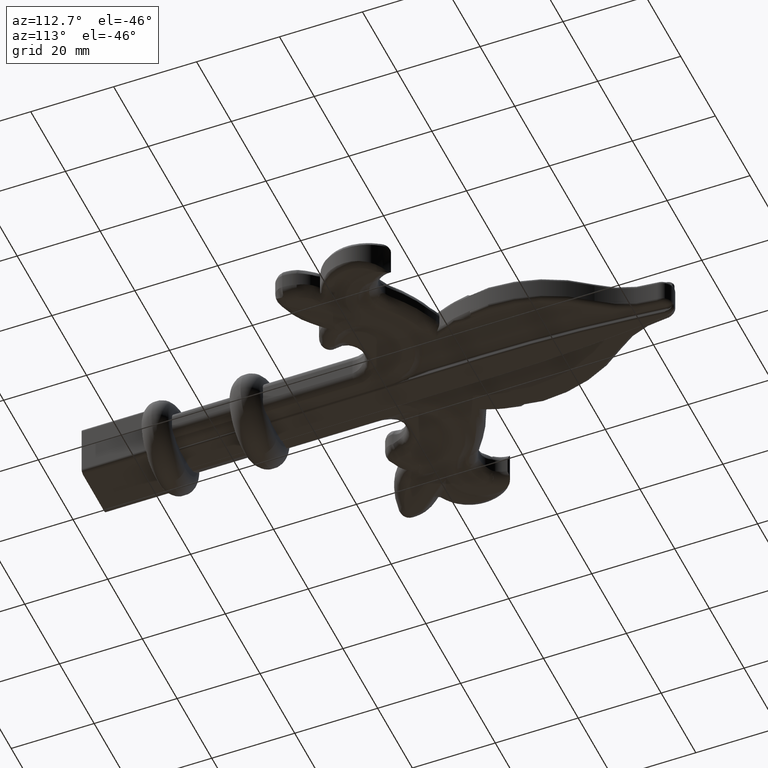
[diagram: clean part render]
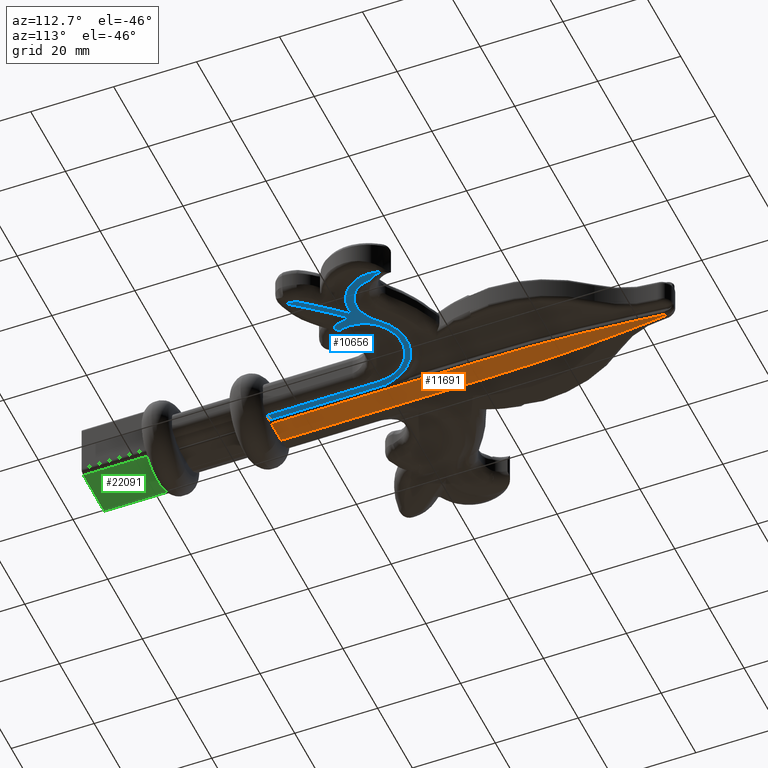
[diagram: same view with three faces highlighted in distinct colors, each labeled with its STEP entity id]
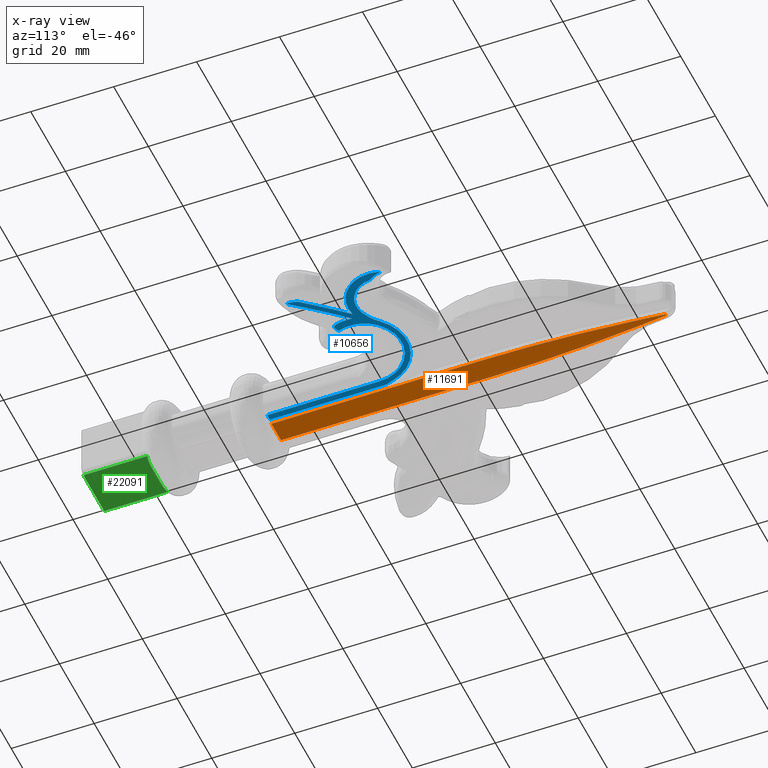
[diagram: x-ray of the same camera — body ghosted, the three highlighted faces saturated]
A machine part, auxiliary view with three faces highlighted in distinct colors.
The next image is the same camera in x-ray (body ghosted, the three faces saturated) — at least one of them is partly hidden behind the body in this view.
Their STEP definitions:

[orange] entity #11691 — the highlighted planar face has unit normal (0, 0, -1).
#289 = ORIENTED_EDGE ( 'NONE', *, *, #1900, .T. ) ;
#840 = LINE ( 'NONE', #21511, #9510 ) ;
#1342 = AXIS2_PLACEMENT_3D ( 'NONE', #23990, #10650, #26138 ) ;
#1398 = DIRECTION ( 'NONE',  ( 1.000000000000000000, 0.000000000000000000, 0.000000000000000000 ) ) ;
#1900 = EDGE_CURVE ( 'NONE', #17705, #24250, #27475, .T. ) ;
#2977 = CARTESIAN_POINT ( 'NONE',  ( 0.1958383187995045849, 122.9807466314520212, -5.000000000000000888 ) ) ;
#3470 = CARTESIAN_POINT ( 'NONE',  ( -2.749999999999976019, 80.00000000000004263, -5.000000000000000000 ) ) ;
#3630 = ORIENTED_EDGE ( 'NONE', *, *, #22483, .F. ) ;
#3844 = VERTEX_POINT ( 'NONE', #26179 ) ;
#3938 = VERTEX_POINT ( 'NONE', #21864 ) ;
#4014 = DIRECTION ( 'NONE',  ( -1.000000000000000000, 0.000000000000000000, 0.000000000000000000 ) ) ;
#5580 = CARTESIAN_POINT ( 'NONE',  ( -347.4095368381057369, 80.00000000000000000, -5.000000000000000000 ) ) ;
#6903 = CARTESIAN_POINT ( 'NONE',  ( -2.749999999999976019, 80.00000000000004263, -5.000000000000000000 ) ) ;
#7124 = VERTEX_POINT ( 'NONE', #10505 ) ;
#7967 = DIRECTION ( 'NONE',  ( 0.09981191532845422321, 0.9950063223711019811, 0.000000000000000000 ) ) ;
#8008 = CARTESIAN_POINT ( 'NONE',  ( 2.749999999999976019, 80.00000000000004263, -5.000000000000000000 ) ) ;
#8588 = CARTESIAN_POINT ( 'NONE',  ( -2.749999999999975575, 29.00000000000000000, -5.000000000000000000 ) ) ;
#8785 = DIRECTION ( 'NONE',  ( -0.09981191532845422321, 0.9950063223711019811, 0.000000000000000000 ) ) ;
#9346 = ORIENTED_EDGE ( 'NONE', *, *, #27784, .F. ) ;
#9351 = EDGE_CURVE ( 'NONE', #9873, #7124, #17237, .T. ) ;
#9510 = VECTOR ( 'NONE', #7967, 1000.000000000000114 ) ;
#9873 = VERTEX_POINT ( 'NONE', #19221 ) ;
#10079 = AXIS2_PLACEMENT_3D ( 'NONE', #5580, #14515, #1398 ) ;
#10505 = CARTESIAN_POINT ( 'NONE',  ( 0.000000000000000000, 122.9999890824078506, -5.000000000000000000 ) ) ;
#10650 = DIRECTION ( 'NONE',  ( 0.000000000000000000, 0.000000000000000000, -1.000000000000000000 ) ) ;
#11111 = LINE ( 'NONE', #17436, #22273 ) ;
#11691 = ADVANCED_FACE ( 'NONE', ( #27158 ), #12605, .T. ) ;
#11722 = B_SPLINE_CURVE_WITH_KNOTS ( 'NONE', 3,
 ( #23247, #14405, #16531, #23150 ),
 .UNSPECIFIED., .F., .F.,
 ( 4, 4 ),
 ( 0.7593153901365838898, 1.000000000000000000 ),
 .UNSPECIFIED. ) ;
#11997 = EDGE_CURVE ( 'NONE', #17547, #21254, #14223, .T. ) ;
#12605 = PLANE ( 'NONE',  #1342 ) ;
#13281 = EDGE_LOOP ( 'NONE', ( #27482, #3630, #15559, #289, #23050, #23466, #15185, #16453, #9346 ) ) ;
#13712 = CARTESIAN_POINT ( 'NONE',  ( 0.06570243381757459589, 122.9999573146637317, -5.000000000000000888 ) ) ;
#13806 = CARTESIAN_POINT ( 'NONE',  ( 0.000000000000000000, 122.9999890824078506, -5.000000000000000888 ) ) ;
#14223 = CIRCLE ( 'NONE', #10079, 350.1595368381056801 ) ;
#14405 = CARTESIAN_POINT ( 'NONE',  ( -0.1321420226886201033, 122.9936108293076131, -5.000000000000000000 ) ) ;
#14515 = DIRECTION ( 'NONE',  ( -0.000000000000000000, -0.000000000000000000, 1.000000000000000000 ) ) ;
#14749 = CIRCLE ( 'NONE', #20991, 350.1595368381056801 ) ;
#14952 = EDGE_CURVE ( 'NONE', #28606, #3844, #840, .T. ) ;
#15185 = ORIENTED_EDGE ( 'NONE', *, *, #26554, .T. ) ;
#15559 = ORIENTED_EDGE ( 'NONE', *, *, #18702, .F. ) ;
#16453 = ORIENTED_EDGE ( 'NONE', *, *, #9351, .F. ) ;
#16531 = CARTESIAN_POINT ( 'NONE',  ( -0.06684896866851157415, 122.9999567602996962, -5.000000000000000000 ) ) ;
#17237 = B_SPLINE_CURVE_WITH_KNOTS ( 'NONE', 3,
 ( #2977, #18069, #13712, #13806 ),
 .UNSPECIFIED., .F., .F.,
 ( 4, 4 ),
 ( 0.7582882186065450503, 1.000000000000000000 ),
 .UNSPECIFIED. ) ;
#17436 = CARTESIAN_POINT ( 'NONE',  ( 0.000000000000000000, 29.00000000000000000, -5.000000000000000000 ) ) ;
#17547 = VERTEX_POINT ( 'NONE', #8008 ) ;
#17705 = VERTEX_POINT ( 'NONE', #8588 ) ;
#18069 = CARTESIAN_POINT ( 'NONE',  ( 0.1313804285707133590, 122.9933975955205341, -5.000000000000000888 ) ) ;
#18702 = EDGE_CURVE ( 'NONE', #17705, #3938, #11111, .T. ) ;
#19221 = CARTESIAN_POINT ( 'NONE',  ( 0.1958383187995045849, 122.9807466314520212, -5.000000000000000000 ) ) ;
#19379 = DIRECTION ( 'NONE',  ( 0.000000000000000000, 0.000000000000000000, -1.000000000000000000 ) ) ;
#19472 = CARTESIAN_POINT ( 'NONE',  ( 347.4095368381057369, 80.00000000000000000, -5.000000000000000000 ) ) ;
#19942 = VECTOR ( 'NONE', #27162, 1000.000000000000000 ) ;
#20074 = CARTESIAN_POINT ( 'NONE',  ( 0.2304507295558823610, 122.6357042169481986, -5.000000000000000000 ) ) ;
#20991 = AXIS2_PLACEMENT_3D ( 'NONE', #19472, #19379, #4014 ) ;
#21254 = VERTEX_POINT ( 'NONE', #27480 ) ;
#21511 = CARTESIAN_POINT ( 'NONE',  ( -0.2304507295558823610, 122.6357042169481986, -5.000000000000000000 ) ) ;
#21523 = VECTOR ( 'NONE', #22575, 1000.000000000000000 ) ;
#21864 = CARTESIAN_POINT ( 'NONE',  ( 2.749999999999975575, 29.00000000000000000, -5.000000000000000000 ) ) ;
#21996 = EDGE_CURVE ( 'NONE', #24250, #28606, #14749, .T. ) ;
#22273 = VECTOR ( 'NONE', #26625, 1000.000000000000000 ) ;
#22369 = CARTESIAN_POINT ( 'NONE',  ( -1.001416154346232767, 114.9500940423357775, -5.000000000000000000 ) ) ;
#22483 = EDGE_CURVE ( 'NONE', #3938, #17547, #26257, .T. ) ;
#22575 = DIRECTION ( 'NONE',  ( -1.188166764367675911E-17, 1.000000000000000000, 0.000000000000000000 ) ) ;
#23050 = ORIENTED_EDGE ( 'NONE', *, *, #21996, .T. ) ;
#23150 = CARTESIAN_POINT ( 'NONE',  ( 0.000000000000000000, 122.9999890824078506, -5.000000000000000000 ) ) ;
#23214 = LINE ( 'NONE', #20074, #25326 ) ;
#23247 = CARTESIAN_POINT ( 'NONE',  ( -0.1958383187995045849, 122.9807466314520212, -5.000000000000000000 ) ) ;
#23466 = ORIENTED_EDGE ( 'NONE', *, *, #14952, .T. ) ;
#23990 = CARTESIAN_POINT ( 'NONE',  ( 1.145786434690479240E-53, 122.0000000000000000, -5.000000000000000000 ) ) ;
#24250 = VERTEX_POINT ( 'NONE', #3470 ) ;
#25326 = VECTOR ( 'NONE', #8785, 1000.000000000000114 ) ;
#26138 = DIRECTION ( 'NONE',  ( 1.000000000000000000, 0.000000000000000000, 0.000000000000000000 ) ) ;
#26179 = CARTESIAN_POINT ( 'NONE',  ( -0.1958383187995045849, 122.9807466314520212, -5.000000000000000000 ) ) ;
#26257 = LINE ( 'NONE', #27453, #19942 ) ;
#26554 = EDGE_CURVE ( 'NONE', #3844, #7124, #11722, .T. ) ;
#26625 = DIRECTION ( 'NONE',  ( 1.000000000000000000, 0.000000000000000000, 0.000000000000000000 ) ) ;
#27158 = FACE_OUTER_BOUND ( 'NONE', #13281, .T. ) ;
#27162 = DIRECTION ( 'NONE',  ( 1.188166764367675911E-17, 1.000000000000000000, 0.000000000000000000 ) ) ;
#27453 = CARTESIAN_POINT ( 'NONE',  ( 2.749999999999976019, 80.00000000000004263, -5.000000000000000000 ) ) ;
#27475 = LINE ( 'NONE', #6903, #21523 ) ;
#27480 = CARTESIAN_POINT ( 'NONE',  ( 1.001416154346232767, 114.9500940423357775, -5.000000000000000000 ) ) ;
#27482 = ORIENTED_EDGE ( 'NONE', *, *, #11997, .F. ) ;
#27784 = EDGE_CURVE ( 'NONE', #21254, #9873, #23214, .T. ) ;
#28606 = VERTEX_POINT ( 'NONE', #22369 ) ;

[blue] entity #10656 — the highlighted planar face has unit normal (0, 0, -1).
#174 = CARTESIAN_POINT ( 'NONE',  ( 30.30029310485401695, 71.27983662871282888, -4.500000000000000888 ) ) ;
#680 = CIRCLE ( 'NONE', #6336, 9.359758200862035693 ) ;
#682 = DIRECTION ( 'NONE',  ( -0.000000000000000000, -0.000000000000000000, 1.000000000000000000 ) ) ;
#913 = VERTEX_POINT ( 'NONE', #9046 ) ;
#972 = CARTESIAN_POINT ( 'NONE',  ( 35.23999277316357137, 46.37014681593282006, -4.500000000000000888 ) ) ;
#1002 = ORIENTED_EDGE ( 'NONE', *, *, #15989, .F. ) ;
#1161 = CARTESIAN_POINT ( 'NONE',  ( 35.29988564197278578, 46.35979701133161512, -4.500000000000000888 ) ) ;
#1566 = CARTESIAN_POINT ( 'NONE',  ( 25.18893648217897407, 54.29085666113990527, -4.500000000000000888 ) ) ;
#1737 = DIRECTION ( 'NONE',  ( 1.000000000000000000, 0.000000000000000000, 0.000000000000000000 ) ) ;
#1882 = DIRECTION ( 'NONE',  ( 1.000000000000000000, 0.000000000000000000, 0.000000000000000000 ) ) ;
#2090 = CARTESIAN_POINT ( 'NONE',  ( 25.16095187142487433, 54.17343590854900270, -4.500000000000001776 ) ) ;
#2161 = CIRCLE ( 'NONE', #26423, 7.700000000000001954 ) ;
#2178 = CARTESIAN_POINT ( 'NONE',  ( 15.21819514112972982, 56.66715990565472794, -4.500000000000000888 ) ) ;
#2184 = CARTESIAN_POINT ( 'NONE',  ( 23.86736874086567539, 53.25719315724322911, -4.500000000000000888 ) ) ;
#2231 = CIRCLE ( 'NONE', #3580, 11.35975820086203569 ) ;
#2236 = ORIENTED_EDGE ( 'NONE', *, *, #14101, .F. ) ;
#2458 = DIRECTION ( 'NONE',  ( 0.000000000000000000, 0.000000000000000000, -1.000000000000000000 ) ) ;
#2587 = ORIENTED_EDGE ( 'NONE', *, *, #16614, .F. ) ;
#2785 = FACE_OUTER_BOUND ( 'NONE', #11213, .T. ) ;
#3146 = VERTEX_POINT ( 'NONE', #15178 ) ;
#3312 = CARTESIAN_POINT ( 'NONE',  ( 34.97101379403625288, 46.50012076271558215, -4.500000000000000888 ) ) ;
#3332 = CARTESIAN_POINT ( 'NONE',  ( -111.1841496977055641, -65.80098786854952664, -4.500000000000000888 ) ) ;
#3580 = AXIS2_PLACEMENT_3D ( 'NONE', #174, #9253, #6941 ) ;
#3656 = EDGE_CURVE ( 'NONE', #18104, #27561, #6133, .T. ) ;
#4035 = CARTESIAN_POINT ( 'NONE',  ( 34.89789978000787585, 66.27384819464359111, -4.500000000000000888 ) ) ;
#4195 = CARTESIAN_POINT ( 'NONE',  ( 25.12690680795295961, 54.05749160311642498, -4.500000000000001776 ) ) ;
#4408 = CARTESIAN_POINT ( 'NONE',  ( 3.616025403783064807, 56.95461707574427379, -4.500000000000000888 ) ) ;
#4574 = AXIS2_PLACEMENT_3D ( 'NONE', #2178, #2458, #24344 ) ;
#4742 = CARTESIAN_POINT ( 'NONE',  ( 15.21819514112972982, 56.66715990565472794, -4.500000000000000888 ) ) ;
#4825 = CARTESIAN_POINT ( 'NONE',  ( 35.29988564197278578, 46.35979701133161512, -4.500000000000000888 ) ) ;
#5778 = CARTESIAN_POINT ( 'NONE',  ( 23.57795334199175841, 56.66715990565472794, -4.500000000000000888 ) ) ;
#5785 = ORIENTED_EDGE ( 'NONE', *, *, #19483, .T. ) ;
#5904 = CARTESIAN_POINT ( 'NONE',  ( 15.21819514112972982, 56.66715990565472794, -4.500000000000000888 ) ) ;
#6018 = VERTEX_POINT ( 'NONE', #4035 ) ;
#6069 = CARTESIAN_POINT ( 'NONE',  ( 23.14068716556777616, 53.66458827041779500, -4.500000000000000888 ) ) ;
#6097 = VERTEX_POINT ( 'NONE', #5778 ) ;
#6100 = ORIENTED_EDGE ( 'NONE', *, *, #16848, .F. ) ;
#6133 = B_SPLINE_CURVE_WITH_KNOTS ( 'NONE', 3,
 ( #26017, #6069, #26116, #15482, #10807, #8647, #2184, #10713, #17698, #21987, #21898, #19837, #24446, #28654, #8556, #4195, #2090, #17408 ),
 .UNSPECIFIED., .F., .F.,
 ( 4, 2, 2, 2, 2, 2, 2, 2, 4 ),
 ( -0.002602089706702009984, -0.002240384053794781342, -0.001878678400887552266, -0.001516972747980323624, -0.001155267095073094765, -0.0007935614421658659066, -0.0004318557892586372647, -7.015013635140818909E-05, 0.0002915555165558204528 ),
 .UNSPECIFIED. ) ;
#6336 = AXIS2_PLACEMENT_3D ( 'NONE', #28442, #13013, #15442 ) ;
#6384 = ORIENTED_EDGE ( 'NONE', *, *, #13558, .F. ) ;
#6542 = AXIS2_PLACEMENT_3D ( 'NONE', #4742, #11427, #9269 ) ;
#6941 = DIRECTION ( 'NONE',  ( 1.000000000000000000, 0.000000000000000000, 0.000000000000000000 ) ) ;
#7052 = CIRCLE ( 'NONE', #6542, 8.359758200862030364 ) ;
#7134 = EDGE_CURVE ( 'NONE', #11871, #6018, #2161, .T. ) ;
#7552 = CARTESIAN_POINT ( 'NONE',  ( 35.09590089549445935, 46.41591508335277183, -4.500000000000001776 ) ) ;
#7893 = DIRECTION ( 'NONE',  ( 1.771162734906955590E-17, 1.000000000000000000, 0.000000000000000000 ) ) ;
#7968 = EDGE_CURVE ( 'NONE', #24500, #17916, #19281, .T. ) ;
#8166 = CARTESIAN_POINT ( 'NONE',  ( 0.000000000000000000, 29.00000000000000000, -4.500000000000000888 ) ) ;
#8311 = DIRECTION ( 'NONE',  ( 1.000000000000000000, 0.000000000000000000, 0.000000000000000000 ) ) ;
#8448 = DIRECTION ( 'NONE',  ( 1.000000000000000000, 0.000000000000000000, 0.000000000000000000 ) ) ;
#8556 = CARTESIAN_POINT ( 'NONE',  ( 25.04009315508499611, 53.83238420327625562, -4.500000000000000888 ) ) ;
#8624 = ORIENTED_EDGE ( 'NONE', *, *, #27931, .F. ) ;
#8647 = CARTESIAN_POINT ( 'NONE',  ( 23.75511030828817738, 53.29662455452337610, -4.500000000000001776 ) ) ;
#8731 = PLANE ( 'NONE',  #14355 ) ;
#9046 = CARTESIAN_POINT ( 'NONE',  ( 3.616025403784413506, 29.00000000000000000, -4.500000000000000888 ) ) ;
#9253 = DIRECTION ( 'NONE',  ( 0.000000000000000000, 0.000000000000000000, -1.000000000000000000 ) ) ;
#9258 = DIRECTION ( 'NONE',  ( 1.000000000000000000, 0.000000000000000000, 0.000000000000000000 ) ) ;
#9269 = DIRECTION ( 'NONE',  ( 1.000000000000000000, 0.000000000000000000, 0.000000000000000000 ) ) ;
#9457 = CARTESIAN_POINT ( 'NONE',  ( 36.79638489220153730, 66.59755022337726871, -4.500000000000000888 ) ) ;
#9504 = LINE ( 'NONE', #22238, #16830 ) ;
#9528 = CARTESIAN_POINT ( 'NONE',  ( 36.30589113325704886, 69.20114299807997327, -4.500000000000000888 ) ) ;
#9585 = DIRECTION ( 'NONE',  ( -1.188166764367675911E-17, -1.000000000000000000, -0.000000000000000000 ) ) ;
#9633 = CARTESIAN_POINT ( 'NONE',  ( 21.22213286200837956, 62.48422867099441191, -4.500000000000000888 ) ) ;
#9726 = ORIENTED_EDGE ( 'NONE', *, *, #16649, .F. ) ;
#9813 = EDGE_CURVE ( 'NONE', #16947, #24064, #24691, .T. ) ;
#9837 = ORIENTED_EDGE ( 'NONE', *, *, #17966, .F. ) ;
#9891 = DIRECTION ( 'NONE',  ( 1.000000000000000000, 0.000000000000000000, 0.000000000000000000 ) ) ;
#10071 = VERTEX_POINT ( 'NONE', #17824 ) ;
#10327 = AXIS2_PLACEMENT_3D ( 'NONE', #15162, #19328, #15064 ) ;
#10393 = B_SPLINE_CURVE_WITH_KNOTS ( 'NONE', 3,
 ( #22578, #20429, #11484, #9528 ),
 .UNSPECIFIED., .F., .F.,
 ( 4, 4 ),
 ( 0.000000000000000000, 0.0006019001282292522426 ),
 .UNSPECIFIED. ) ;
#10656 = ADVANCED_FACE ( 'NONE', ( #2785 ), #8731, .T. ) ;
#10713 = CARTESIAN_POINT ( 'NONE',  ( 24.10401757569953674, 53.21072966276718574, -4.500000000000001776 ) ) ;
#10807 = CARTESIAN_POINT ( 'NONE',  ( 23.53832535497604539, 53.39613597734879136, -4.500000000000000888 ) ) ;
#10974 = ORIENTED_EDGE ( 'NONE', *, *, #20303, .F. ) ;
#11213 = EDGE_LOOP ( 'NONE', ( #12441, #19662, #6384, #13186, #28501, #1002, #25757, #5785, #2587, #6100, #21277, #8624, #9726, #13654, #23577, #13411, #2236, #10974, #27682, #9837, #12373, #18840 ) ) ;
#11391 = EDGE_CURVE ( 'NONE', #15602, #14736, #680, .T. ) ;
#11427 = DIRECTION ( 'NONE',  ( 0.000000000000000000, 0.000000000000000000, -1.000000000000000000 ) ) ;
#11484 = CARTESIAN_POINT ( 'NONE',  ( 36.40456033673431335, 69.02518661097488462, -4.500000000000000888 ) ) ;
#11518 = CARTESIAN_POINT ( 'NONE',  ( 28.54638489220153730, 66.59755022337726871, -4.500000000000000888 ) ) ;
#11681 = EDGE_CURVE ( 'NONE', #27561, #3146, #23645, .T. ) ;
#11871 = VERTEX_POINT ( 'NONE', #20242 ) ;
#11882 = VERTEX_POINT ( 'NONE', #28532 ) ;
#11926 = VERTEX_POINT ( 'NONE', #14204 ) ;
#12174 = EDGE_CURVE ( 'NONE', #23798, #24500, #28332, .T. ) ;
#12353 = CARTESIAN_POINT ( 'NONE',  ( -111.1841496977055641, -65.80098786854952664, -4.500000000000000888 ) ) ;
#12373 = ORIENTED_EDGE ( 'NONE', *, *, #26040, .F. ) ;
#12441 = ORIENTED_EDGE ( 'NONE', *, *, #7968, .F. ) ;
#13013 = DIRECTION ( 'NONE',  ( 0.000000000000000000, 0.000000000000000000, -1.000000000000000000 ) ) ;
#13092 = AXIS2_PLACEMENT_3D ( 'NONE', #17450, #26640, #24300 ) ;
#13186 = ORIENTED_EDGE ( 'NONE', *, *, #28863, .F. ) ;
#13355 = EDGE_CURVE ( 'NONE', #17916, #913, #9504, .T. ) ;
#13411 = ORIENTED_EDGE ( 'NONE', *, *, #3656, .F. ) ;
#13558 = EDGE_CURVE ( 'NONE', #25730, #23798, #2231, .T. ) ;
#13573 = VECTOR ( 'NONE', #7893, 1000.000000000000000 ) ;
#13654 = ORIENTED_EDGE ( 'NONE', *, *, #18526, .F. ) ;
#13867 = DIRECTION ( 'NONE',  ( 1.000000000000000000, 0.000000000000000000, 0.000000000000000000 ) ) ;
#14029 = CARTESIAN_POINT ( 'NONE',  ( 3.616025403783064807, 56.95461707574427379, -4.500000000000000888 ) ) ;
#14101 = EDGE_CURVE ( 'NONE', #6097, #18104, #7052, .T. ) ;
#14204 = CARTESIAN_POINT ( 'NONE',  ( 36.53808042881843221, 68.64579397108346370, -4.500000000000000888 ) ) ;
#14230 = AXIS2_PLACEMENT_3D ( 'NONE', #28523, #17190, #8311 ) ;
#14355 = AXIS2_PLACEMENT_3D ( 'NONE', #24337, #21795, #8448 ) ;
#14437 = AXIS2_PLACEMENT_3D ( 'NONE', #25953, #27930, #19107 ) ;
#14471 = CIRCLE ( 'NONE', #4574, 8.359758200862030364 ) ;
#14736 = VERTEX_POINT ( 'NONE', #9633 ) ;
#15064 = DIRECTION ( 'NONE',  ( 1.000000000000000000, 0.000000000000000000, 0.000000000000000000 ) ) ;
#15162 = CARTESIAN_POINT ( 'NONE',  ( 28.54638489220153730, 66.59755022337726871, -4.500000000000000888 ) ) ;
#15178 = CARTESIAN_POINT ( 'NONE',  ( 25.46819514112974048, 56.66715990565472794, -4.500000000000000888 ) ) ;
#15292 = AXIS2_PLACEMENT_3D ( 'NONE', #5904, #23699, #1737 ) ;
#15442 = DIRECTION ( 'NONE',  ( 1.000000000000000000, 0.000000000000000000, 0.000000000000000000 ) ) ;
#15482 = CARTESIAN_POINT ( 'NONE',  ( 23.43355148889822814, 53.45683014004742972, -4.500000000000000000 ) ) ;
#15602 = VERTEX_POINT ( 'NONE', #27925 ) ;
#15989 = EDGE_CURVE ( 'NONE', #11926, #11871, #10393, .T. ) ;
#16491 = CARTESIAN_POINT ( 'NONE',  ( 35.18075034027512515, 46.38458571737734104, -4.500000000000001776 ) ) ;
#16520 = DIRECTION ( 'NONE',  ( 0.000000000000000000, 0.000000000000000000, -1.000000000000000000 ) ) ;
#16614 = EDGE_CURVE ( 'NONE', #23870, #25500, #20590, .T. ) ;
#16649 = EDGE_CURVE ( 'NONE', #10071, #18115, #27589, .T. ) ;
#16696 = CARTESIAN_POINT ( 'NONE',  ( 14.49999999999998757, 55.97131815693765589, -4.500000000000000888 ) ) ;
#16709 = DIRECTION ( 'NONE',  ( -0.000000000000000000, -0.000000000000000000, 1.000000000000000000 ) ) ;
#16830 = VECTOR ( 'NONE', #9585, 1000.000000000000000 ) ;
#16848 = EDGE_CURVE ( 'NONE', #24064, #23870, #18475, .T. ) ;
#16947 = VERTEX_POINT ( 'NONE', #4825 ) ;
#17066 = CARTESIAN_POINT ( 'NONE',  ( 26.31549846440636742, 60.64190835035373794, -4.500000000000000888 ) ) ;
#17190 = DIRECTION ( 'NONE',  ( 0.000000000000000000, 0.000000000000000000, -1.000000000000000000 ) ) ;
#17408 = CARTESIAN_POINT ( 'NONE',  ( 25.18893648217897407, 54.29085666113990527, -4.500000000000000888 ) ) ;
#17450 = CARTESIAN_POINT ( 'NONE',  ( 28.00000000000000711, 46.40065792321464500, -4.500000000000000888 ) ) ;
#17698 = CARTESIAN_POINT ( 'NONE',  ( 24.22597351853399772, 53.20490970483606219, -4.500000000000000888 ) ) ;
#17709 = CARTESIAN_POINT ( 'NONE',  ( 4.297287812996420264, 58.99115417455379173, -4.500000000000000888 ) ) ;
#17824 = CARTESIAN_POINT ( 'NONE',  ( 25.38356452018911114, 57.98160480266713535, -4.500000000000000888 ) ) ;
#17916 = VERTEX_POINT ( 'NONE', #14029 ) ;
#17966 = EDGE_CURVE ( 'NONE', #11882, #15602, #25786, .T. ) ;
#18002 = DIRECTION ( 'NONE',  ( 0.000000000000000000, 0.000000000000000000, -1.000000000000000000 ) ) ;
#18104 = VERTEX_POINT ( 'NONE', #18758 ) ;
#18115 = VERTEX_POINT ( 'NONE', #23254 ) ;
#18475 = CIRCLE ( 'NONE', #13092, 7.300000000000011369 ) ;
#18511 = CARTESIAN_POINT ( 'NONE',  ( 35.06821895800451472, 46.42795292033778054, -4.500000000000000000 ) ) ;
#18526 = EDGE_CURVE ( 'NONE', #3146, #10071, #20886, .T. ) ;
#18758 = CARTESIAN_POINT ( 'NONE',  ( 23.05008712419050099, 53.74363033635866316, -4.500000000000000888 ) ) ;
#18820 = CARTESIAN_POINT ( 'NONE',  ( 34.98992206008748695, 46.47551245075023019, -4.500000000000000888 ) ) ;
#18840 = ORIENTED_EDGE ( 'NONE', *, *, #13355, .F. ) ;
#19107 = DIRECTION ( 'NONE',  ( 1.000000000000000000, 0.000000000000000000, 0.000000000000000000 ) ) ;
#19281 = B_SPLINE_CURVE_WITH_KNOTS ( 'NONE', 3,
 ( #17709, #22101, #19764, #4408 ),
 .UNSPECIFIED., .F., .F.,
 ( 4, 4 ),
 ( 0.000000000000000000, 0.002147339212437258602 ),
 .UNSPECIFIED. ) ;
#19328 = DIRECTION ( 'NONE',  ( 0.000000000000000000, 0.000000000000000000, -1.000000000000000000 ) ) ;
#19483 = EDGE_CURVE ( 'NONE', #24192, #25500, #27385, .T. ) ;
#19505 = CARTESIAN_POINT ( 'NONE',  ( 34.92096386772492167, 48.72235108589709540, -4.500000000000000888 ) ) ;
#19662 = ORIENTED_EDGE ( 'NONE', *, *, #12174, .F. ) ;
#19764 = CARTESIAN_POINT ( 'NONE',  ( 3.861739935506987464, 57.62700751213827743, -4.500000000000000888 ) ) ;
#19837 = CARTESIAN_POINT ( 'NONE',  ( 24.77256796167724318, 53.43260728308320751, -4.500000000000001776 ) ) ;
#20242 = CARTESIAN_POINT ( 'NONE',  ( 36.30589113325704886, 69.20114299807997327, -4.500000000000000888 ) ) ;
#20263 = CARTESIAN_POINT ( 'NONE',  ( 35.30000000000001847, 46.40065792321464500, -4.500000000000000888 ) ) ;
#20303 = EDGE_CURVE ( 'NONE', #14736, #6097, #14471, .T. ) ;
#20429 = CARTESIAN_POINT ( 'NONE',  ( 36.48765881207315687, 68.84252554170024041, -4.499999999999999112 ) ) ;
#20590 = CIRCLE ( 'NONE', #24821, 185.6402417991379536 ) ;
#20624 = CARTESIAN_POINT ( 'NONE',  ( 4.297287812996420264, 58.99115417455379173, -4.500000000000000888 ) ) ;
#20886 = CIRCLE ( 'NONE', #14437, 10.25000000000000533 ) ;
#21084 = CARTESIAN_POINT ( 'NONE',  ( 35.01517443899846427, 46.45818069924160199, -4.500000000000000888 ) ) ;
#21108 = DIRECTION ( 'NONE',  ( 1.000000000000000000, 0.000000000000000000, 0.000000000000000000 ) ) ;
#21238 = CARTESIAN_POINT ( 'NONE',  ( 5.140241799137953649, 55.97131815693765589, -4.500000000000000888 ) ) ;
#21277 = ORIENTED_EDGE ( 'NONE', *, *, #9813, .F. ) ;
#21795 = DIRECTION ( 'NONE',  ( 0.000000000000000000, 0.000000000000000000, -1.000000000000000000 ) ) ;
#21898 = CARTESIAN_POINT ( 'NONE',  ( 24.57708553306327204, 53.29264509582888820, -4.500000000000000888 ) ) ;
#21987 = CARTESIAN_POINT ( 'NONE',  ( 24.46405616696749163, 53.24551912960844646, -4.500000000000001776 ) ) ;
#22101 = CARTESIAN_POINT ( 'NONE',  ( 4.093926859562291298, 58.30408598082402705, -4.500000000000000888 ) ) ;
#22111 = CIRCLE ( 'NONE', #14230, 6.359758200862035693 ) ;
#22159 = DIRECTION ( 'NONE',  ( 0.000000000000000000, 0.000000000000000000, -1.000000000000000000 ) ) ;
#22238 = CARTESIAN_POINT ( 'NONE',  ( 3.616025403784413506, 28.99999999999999645, -4.500000000000000888 ) ) ;
#22566 = AXIS2_PLACEMENT_3D ( 'NONE', #16696, #23018, #9891 ) ;
#22578 = CARTESIAN_POINT ( 'NONE',  ( 36.53808042881843221, 68.64579397108346370, -4.500000000000000888 ) ) ;
#22830 = CARTESIAN_POINT ( 'NONE',  ( 22.14176996058648683, 63.37524261722224139, -4.500000000000000888 ) ) ;
#23018 = DIRECTION ( 'NONE',  ( -0.000000000000000000, -0.000000000000000000, 1.000000000000000000 ) ) ;
#23028 = CARTESIAN_POINT ( 'NONE',  ( 28.00000000000000711, 46.40065792321464500, -4.500000000000000888 ) ) ;
#23254 = CARTESIAN_POINT ( 'NONE',  ( 34.97101379403625288, 46.50012076271558215, -4.500000000000000888 ) ) ;
#23277 = VECTOR ( 'NONE', #25920, 1000.000000000000000 ) ;
#23468 = AXIS2_PLACEMENT_3D ( 'NONE', #11518, #18002, #9258 ) ;
#23577 = ORIENTED_EDGE ( 'NONE', *, *, #11681, .F. ) ;
#23645 = CIRCLE ( 'NONE', #15292, 10.25000000000000533 ) ;
#23699 = DIRECTION ( 'NONE',  ( -0.000000000000000000, -0.000000000000000000, 1.000000000000000000 ) ) ;
#23798 = VERTEX_POINT ( 'NONE', #22830 ) ;
#23870 = VERTEX_POINT ( 'NONE', #19505 ) ;
#24064 = VERTEX_POINT ( 'NONE', #20263 ) ;
#24070 = EDGE_CURVE ( 'NONE', #11926, #24192, #26904, .T. ) ;
#24192 = VERTEX_POINT ( 'NONE', #9457 ) ;
#24300 = DIRECTION ( 'NONE',  ( 1.000000000000000000, 0.000000000000000000, 0.000000000000000000 ) ) ;
#24337 = CARTESIAN_POINT ( 'NONE',  ( 0.000000000000000000, 0.000000000000000000, -4.500000000000000888 ) ) ;
#24344 = DIRECTION ( 'NONE',  ( 1.000000000000000000, -2.490105719753370260E-15, 0.000000000000000000 ) ) ;
#24421 = AXIS2_PLACEMENT_3D ( 'NONE', #23028, #682, #13867 ) ;
#24426 = CARTESIAN_POINT ( 'NONE',  ( 28.81896162332833455, 71.00000000000001421, -4.500000000000000888 ) ) ;
#24446 = CARTESIAN_POINT ( 'NONE',  ( 24.85461042920252694, 53.52429821886854455, -4.500000000000000888 ) ) ;
#24500 = VERTEX_POINT ( 'NONE', #20624 ) ;
#24691 = CIRCLE ( 'NONE', #24421, 7.300000000000011369 ) ;
#24821 = AXIS2_PLACEMENT_3D ( 'NONE', #3332, #16709, #21108 ) ;
#25053 = CARTESIAN_POINT ( 'NONE',  ( 26.63285466647926825, 58.57253296014055621, -4.500000000000000888 ) ) ;
#25500 = VERTEX_POINT ( 'NONE', #25053 ) ;
#25730 = VERTEX_POINT ( 'NONE', #17066 ) ;
#25757 = ORIENTED_EDGE ( 'NONE', *, *, #24070, .T. ) ;
#25786 = LINE ( 'NONE', #21238, #13573 ) ;
#25920 = DIRECTION ( 'NONE',  ( 1.000000000000000000, 0.000000000000000000, 0.000000000000000000 ) ) ;
#25953 = CARTESIAN_POINT ( 'NONE',  ( 15.21819514112972982, 56.66715990565472794, -4.500000000000000888 ) ) ;
#26017 = CARTESIAN_POINT ( 'NONE',  ( 23.05008712419050099, 53.74363033635866316, -4.500000000000000888 ) ) ;
#26040 = EDGE_CURVE ( 'NONE', #913, #11882, #27463, .T. ) ;
#26116 = CARTESIAN_POINT ( 'NONE',  ( 23.23510667916596972, 53.59087137809279255, -4.500000000000001776 ) ) ;
#26335 = AXIS2_PLACEMENT_3D ( 'NONE', #12353, #16520, #27947 ) ;
#26423 = AXIS2_PLACEMENT_3D ( 'NONE', #24426, #22159, #1882 ) ;
#26640 = DIRECTION ( 'NONE',  ( -0.000000000000000000, -0.000000000000000000, 1.000000000000000000 ) ) ;
#26904 = CIRCLE ( 'NONE', #23468, 8.250000000000000000 ) ;
#27294 = B_SPLINE_CURVE_WITH_KNOTS ( 'NONE', 3,
 ( #3312, #18820, #21084, #18511, #7552, #16491, #972, #1161 ),
 .UNSPECIFIED., .F., .F.,
 ( 4, 2, 2, 4 ),
 ( 0.000000000000000000, 9.086044227485409026E-05, 0.0001817208845497081805, 0.0003634417690994236252 ),
 .UNSPECIFIED. ) ;
#27385 = CIRCLE ( 'NONE', #10327, 8.250000000000000000 ) ;
#27463 = LINE ( 'NONE', #8166, #23277 ) ;
#27561 = VERTEX_POINT ( 'NONE', #1566 ) ;
#27589 = CIRCLE ( 'NONE', #26335, 184.3173101342057407 ) ;
#27682 = ORIENTED_EDGE ( 'NONE', *, *, #11391, .F. ) ;
#27925 = CARTESIAN_POINT ( 'NONE',  ( 5.140241799137953649, 55.97131815693765589, -4.500000000000000888 ) ) ;
#27930 = DIRECTION ( 'NONE',  ( -0.000000000000000000, -0.000000000000000000, 1.000000000000000000 ) ) ;
#27931 = EDGE_CURVE ( 'NONE', #18115, #16947, #27294, .T. ) ;
#27947 = DIRECTION ( 'NONE',  ( 1.000000000000000000, -6.219194887831330236E-14, 0.000000000000000000 ) ) ;
#28332 = CIRCLE ( 'NONE', #22566, 10.64024179913796431 ) ;
#28442 = CARTESIAN_POINT ( 'NONE',  ( 14.49999999999998757, 55.97131815693765589, -4.500000000000000888 ) ) ;
#28501 = ORIENTED_EDGE ( 'NONE', *, *, #7134, .F. ) ;
#28523 = CARTESIAN_POINT ( 'NONE',  ( 28.54638489220153730, 66.59755022337726871, -4.500000000000000888 ) ) ;
#28532 = CARTESIAN_POINT ( 'NONE',  ( 5.140241799137952761, 29.00000000000000000, -4.500000000000000888 ) ) ;
#28654 = CARTESIAN_POINT ( 'NONE',  ( 24.98731436293370578, 53.72329575289130332, -4.500000000000001776 ) ) ;
#28863 = EDGE_CURVE ( 'NONE', #6018, #25730, #22111, .T. ) ;

[green] entity #22091 — the highlighted planar face has unit normal (0, 0, -1).
#311 = CARTESIAN_POINT ( 'NONE',  ( -6.000000000000000000, 2.000000000000000000, -6.999999999999998224 ) ) ;
#410 = DIRECTION ( 'NONE',  ( -0.000000000000000000, 1.000000000000000000, -0.000000000000000000 ) ) ;
#1748 = CARTESIAN_POINT ( 'NONE',  ( 5.518159342118547528, 0.2406265003892083532, -6.999999999999999112 ) ) ;
#3253 = CARTESIAN_POINT ( 'NONE',  ( 6.000000000000077272, 0.4105057700588004566, -6.999999999999998224 ) ) ;
#3318 = EDGE_CURVE ( 'NONE', #27478, #5286, #24220, .T. ) ;
#3614 = FACE_OUTER_BOUND ( 'NONE', #15769, .T. ) ;
#3932 = VECTOR ( 'NONE', #12415, 1000.000000000000000 ) ;
#4079 = EDGE_CURVE ( 'NONE', #8426, #5286, #8209, .T. ) ;
#4302 = CARTESIAN_POINT ( 'NONE',  ( -2.959729717389750547, 0.000000000000000000, -6.999999999999998224 ) ) ;
#5034 = CARTESIAN_POINT ( 'NONE',  ( 0.000000000000000000, 0.000000000000000000, -6.999999999999999112 ) ) ;
#5256 = DIRECTION ( 'NONE',  ( 1.000000000000000000, 0.000000000000000000, 0.000000000000000000 ) ) ;
#5286 = VERTEX_POINT ( 'NONE', #4302 ) ;
#5436 = CARTESIAN_POINT ( 'NONE',  ( -3.474503907029181882, 4.980553729855285994E-16, -6.999999999999999112 ) ) ;
#5741 = ORIENTED_EDGE ( 'NONE', *, *, #4079, .F. ) ;
#6088 = CARTESIAN_POINT ( 'NONE',  ( 5.999999999999999112, -15.00000000000000000, -6.999999999999998224 ) ) ;
#6473 = CARTESIAN_POINT ( 'NONE',  ( 3.473975192852778449, 3.316133988500584841E-16, -6.999999999999998224 ) ) ;
#6533 = CARTESIAN_POINT ( 'NONE',  ( -7.000000000000000000, 2.000000000000000000, -6.999999999999998224 ) ) ;
#6715 = PLANE ( 'NONE',  #22464 ) ;
#7254 = CARTESIAN_POINT ( 'NONE',  ( -5.515039631443929835, 0.2395266053047276911, -6.999999999999998224 ) ) ;
#8209 = LINE ( 'NONE', #5034, #11349 ) ;
#8426 = VERTEX_POINT ( 'NONE', #11616 ) ;
#10315 = VECTOR ( 'NONE', #5256, 1000.000000000000000 ) ;
#10805 = EDGE_CURVE ( 'NONE', #17760, #27478, #26115, .T. ) ;
#11203 = CARTESIAN_POINT ( 'NONE',  ( -6.000000000000000000, -15.00000000000000000, -6.999999999999998224 ) ) ;
#11349 = VECTOR ( 'NONE', #25272, 1000.000000000000000 ) ;
#11616 = CARTESIAN_POINT ( 'NONE',  ( 2.959729717389750547, 0.000000000000000000, -6.999999999999998224 ) ) ;
#11866 = B_SPLINE_CURVE_WITH_KNOTS ( 'NONE', 3,
 ( #26534, #6473, #13170, #26149, #1748, #15416 ),
 .UNSPECIFIED., .F., .F.,
 ( 4, 2, 4 ),
 ( 0.002959351008669188886, 0.004502058975965043779, 0.006044766943260898237 ),
 .UNSPECIFIED. ) ;
#11898 = VERTEX_POINT ( 'NONE', #3253 ) ;
#12037 = CARTESIAN_POINT ( 'NONE',  ( -5.013476294967453839, 0.1378918421697032659, -6.999999999999998224 ) ) ;
#12415 = DIRECTION ( 'NONE',  ( 0.000000000000000000, -1.000000000000000000, 0.000000000000000000 ) ) ;
#12439 = EDGE_CURVE ( 'NONE', #8426, #11898, #11866, .T. ) ;
#13170 = CARTESIAN_POINT ( 'NONE',  ( 3.988115987609770485, 0.01723379705775108031, -6.999999999999998224 ) ) ;
#14308 = EDGE_CURVE ( 'NONE', #11898, #15632, #23431, .T. ) ;
#14960 = VECTOR ( 'NONE', #410, 1000.000000000000000 ) ;
#15416 = CARTESIAN_POINT ( 'NONE',  ( 6.000000000000077272, 0.4105057700588004566, -6.999999999999998224 ) ) ;
#15632 = VERTEX_POINT ( 'NONE', #6088 ) ;
#15769 = EDGE_LOOP ( 'NONE', ( #24386, #19595, #22203, #27790, #16090, #5741 ) ) ;
#16090 = ORIENTED_EDGE ( 'NONE', *, *, #3318, .T. ) ;
#16131 = CARTESIAN_POINT ( 'NONE',  ( -7.000000000000000000, -15.00000000000000000, -6.999999999999998224 ) ) ;
#16222 = CARTESIAN_POINT ( 'NONE',  ( -5.999999999999998224, 0.4105057700587729785, -6.999999999999998224 ) ) ;
#16930 = LINE ( 'NONE', #16131, #10315 ) ;
#17760 = VERTEX_POINT ( 'NONE', #11203 ) ;
#18724 = CARTESIAN_POINT ( 'NONE',  ( -3.990502837865397723, 0.01751492747849627343, -6.999999999999999112 ) ) ;
#19595 = ORIENTED_EDGE ( 'NONE', *, *, #14308, .T. ) ;
#19842 = DIRECTION ( 'NONE',  ( -1.000000000000000000, 0.000000000000000000, -0.000000000000000000 ) ) ;
#22091 = ADVANCED_FACE ( 'NONE', ( #3614 ), #6715, .T. ) ;
#22203 = ORIENTED_EDGE ( 'NONE', *, *, #28608, .F. ) ;
#22464 = AXIS2_PLACEMENT_3D ( 'NONE', #6533, #24637, #19842 ) ;
#23119 = CARTESIAN_POINT ( 'NONE',  ( -5.999999999999998224, 0.4105057700587729785, -6.999999999999998224 ) ) ;
#23431 = LINE ( 'NONE', #25752, #3932 ) ;
#24220 = B_SPLINE_CURVE_WITH_KNOTS ( 'NONE', 3,
 ( #23119, #7254, #12037, #18724, #5436, #27736 ),
 .UNSPECIFIED., .F., .F.,
 ( 4, 2, 4 ),
 ( 0.03451964674893031465, 0.03605206479339492787, 0.03758448283785953414 ),
 .UNSPECIFIED. ) ;
#24386 = ORIENTED_EDGE ( 'NONE', *, *, #12439, .T. ) ;
#24637 = DIRECTION ( 'NONE',  ( 0.000000000000000000, 0.000000000000000000, -1.000000000000000000 ) ) ;
#25272 = DIRECTION ( 'NONE',  ( -1.000000000000000000, 0.000000000000000000, 0.000000000000000000 ) ) ;
#25752 = CARTESIAN_POINT ( 'NONE',  ( 5.999999999999999112, 2.000000000000000000, -6.999999999999998224 ) ) ;
#26115 = LINE ( 'NONE', #311, #14960 ) ;
#26149 = CARTESIAN_POINT ( 'NONE',  ( 5.015872329014350761, 0.1381740532820736056, -6.999999999999999112 ) ) ;
#26534 = CARTESIAN_POINT ( 'NONE',  ( 2.959729717389750547, 0.000000000000000000, -6.999999999999998224 ) ) ;
#27478 = VERTEX_POINT ( 'NONE', #16222 ) ;
#27736 = CARTESIAN_POINT ( 'NONE',  ( -2.959729717389750547, 0.000000000000000000, -6.999999999999998224 ) ) ;
#27790 = ORIENTED_EDGE ( 'NONE', *, *, #10805, .T. ) ;
#28608 = EDGE_CURVE ( 'NONE', #17760, #15632, #16930, .T. ) ;